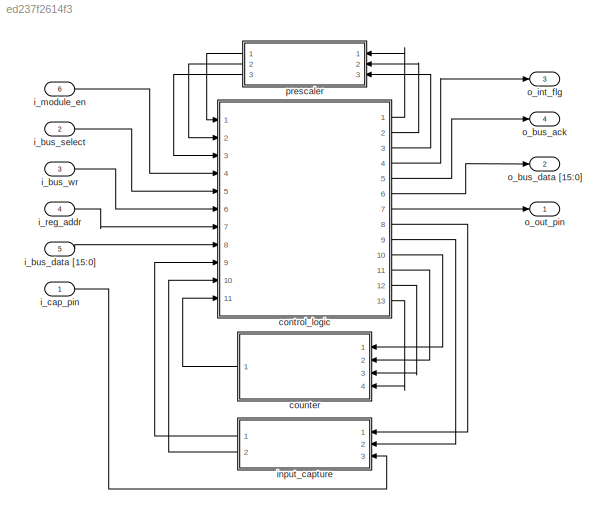
MODEL slx_ed237f2614f3
KIND model
CONFIG AbsTol = auto
CONFIG EnableMultiTasking = off
CONFIG FixedStep = auto
CONFIG MaxStep = auto
CONFIG MinStep = auto
CONFIG RelTol = 1e-3
CONFIG SampleTimeConstraint = Unconstrained
CONFIG Solver = VariableStepAuto
CONFIG SolverName = VariableStepAuto
CONFIG StartTime = 0.0
CONFIG StopTime = 10.0
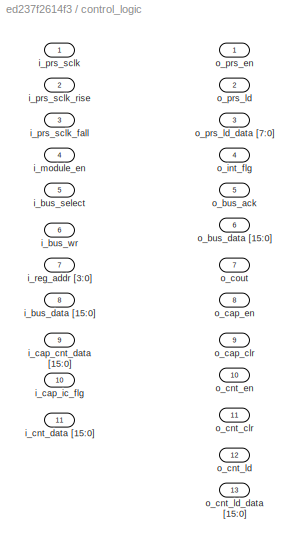
BLOCK [SubSystem] control_logic 
  Ports = [11, 13]
  RequestExecContextInheritance = off
  Variant = off
BLOCK [Inport] control_logic /i_bus_data [15:0]
  IconDisplay = Port number
  Port = 8
BLOCK [Inport] control_logic /i_bus_select
  IconDisplay = Port number
  Port = 5
BLOCK [Inport] control_logic /i_bus_wr
  IconDisplay = Port number
  Port = 6
BLOCK [Inport] control_logic /i_cap_cnt_data [15:0]
  IconDisplay = Port number
  Port = 9
BLOCK [Inport] control_logic /i_cap_ic_flg
  IconDisplay = Port number
  Port = 10
BLOCK [Inport] control_logic /i_cnt_data [15:0]
  IconDisplay = Port number
  Port = 11
BLOCK [Inport] control_logic /i_module_en
  IconDisplay = Port number
  Port = 4
BLOCK [Inport] control_logic /i_prs_sclk
  IconDisplay = Port number
BLOCK [Inport] control_logic /i_prs_sclk_fall
  IconDisplay = Port number
  Port = 3
BLOCK [Inport] control_logic /i_prs_sclk_rise
  IconDisplay = Port number
  Port = 2
BLOCK [Inport] control_logic /i_reg_addr [3:0]
  IconDisplay = Port number
  Port = 7
BLOCK [Outport] control_logic /o_bus_ack
  IconDisplay = Port number
  Port = 5
BLOCK [Outport] control_logic /o_bus_data [15:0]
  IconDisplay = Port number
  Port = 6
BLOCK [Outport] control_logic /o_cap_clr
  IconDisplay = Port number
  Port = 9
BLOCK [Outport] control_logic /o_cap_en
  IconDisplay = Port number
  Port = 8
BLOCK [Outport] control_logic /o_cnt_clr
  IconDisplay = Port number
  Port = 11
BLOCK [Outport] control_logic /o_cnt_en
  IconDisplay = Port number
  Port = 10
BLOCK [Outport] control_logic /o_cnt_ld
  IconDisplay = Port number
  Port = 12
BLOCK [Outport] control_logic /o_cnt_ld_data [15:0]
  IconDisplay = Port number
  Port = 13
BLOCK [Outport] control_logic /o_cout
  IconDisplay = Port number
  Port = 7
BLOCK [Outport] control_logic /o_int_flg
  IconDisplay = Port number
  Port = 4
BLOCK [Outport] control_logic /o_prs_en
  IconDisplay = Port number
BLOCK [Outport] control_logic /o_prs_ld
  IconDisplay = Port number
  Port = 2
BLOCK [Outport] control_logic /o_prs_ld_data [7:0]
  IconDisplay = Port number
  Port = 3
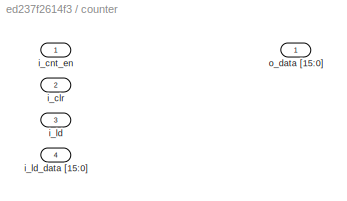
BLOCK [SubSystem] counter
  Ports = [4, 1]
  RequestExecContextInheritance = off
  Variant = off
BLOCK [Inport] counter/i_clr
  IconDisplay = Port number
  Port = 2
BLOCK [Inport] counter/i_cnt_en
  IconDisplay = Port number
BLOCK [Inport] counter/i_ld
  IconDisplay = Port number
  Port = 3
BLOCK [Inport] counter/i_ld_data [15:0]
  IconDisplay = Port number
  Port = 4
BLOCK [Outport] counter/o_data [15:0]
  IconDisplay = Port number
BLOCK [Inport] i_bus_data [15:0]
  IconDisplay = Port number
  Port = 5
BLOCK [Inport] i_bus_select
  IconDisplay = Port number
  Port = 2
BLOCK [Inport] i_bus_wr
  IconDisplay = Port number
  Port = 3
BLOCK [Inport] i_cap_pin
  IconDisplay = Port number
BLOCK [Inport] i_module_en
  IconDisplay = Port number
  Port = 6
BLOCK [Inport] i_reg_addr
  IconDisplay = Port number
  Port = 4
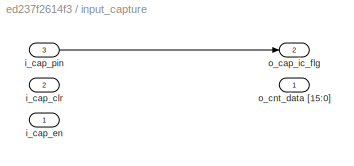
BLOCK [SubSystem] input_capture
  Ports = [3, 2]
  RequestExecContextInheritance = off
  Variant = off
BLOCK [Inport] input_capture/i_cap_clr
  IconDisplay = Port number
  Port = 2
BLOCK [Inport] input_capture/i_cap_en
  IconDisplay = Port number
BLOCK [Inport] input_capture/i_cap_pin
  IconDisplay = Port number
  Port = 3
BLOCK [Outport] input_capture/o_cap_ic_flg
  IconDisplay = Port number
  Port = 2
BLOCK [Outport] input_capture/o_cnt_data [15:0]
  IconDisplay = Port number
BLOCK [Outport] o_bus_ack
  IconDisplay = Port number
  Port = 4
BLOCK [Outport] o_bus_data [15:0]
  IconDisplay = Port number
  Port = 2
BLOCK [Outport] o_int_flg
  IconDisplay = Port number
  Port = 3
BLOCK [Outport] o_out_pin
  IconDisplay = Port number
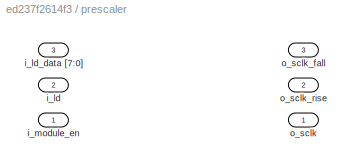
BLOCK [SubSystem] prescaler
  Ports = [3, 3]
  RequestExecContextInheritance = off
  Variant = off
BLOCK [Inport] prescaler/i_ld
  IconDisplay = Port number
  Port = 2
BLOCK [Inport] prescaler/i_ld_data [7:0]
  IconDisplay = Port number
  Port = 3
BLOCK [Inport] prescaler/i_module_en
  IconDisplay = Port number
BLOCK [Outport] prescaler/o_sclk
  IconDisplay = Port number
BLOCK [Outport] prescaler/o_sclk_fall
  IconDisplay = Port number
  Port = 3
BLOCK [Outport] prescaler/o_sclk_rise
  IconDisplay = Port number
  Port = 2
LINE control_logic :1 -> prescaler:1
LINE control_logic :10 -> counter:1
LINE control_logic :11 -> counter:2
LINE control_logic :12 -> counter:3
LINE control_logic :13 -> counter:4
LINE control_logic :2 -> prescaler:2
LINE control_logic :3 -> prescaler:3
LINE control_logic :4 -> o_int_flg:1
LINE control_logic :5 -> o_bus_ack:1
LINE control_logic :6 -> o_bus_data [15:0]:1
LINE control_logic :7 -> o_out_pin:1
LINE control_logic :8 -> input_capture:1
LINE control_logic :9 -> input_capture:2
LINE counter:1 -> control_logic :11
LINE i_bus_data [15:0]:1 -> control_logic :8
LINE i_bus_select:1 -> control_logic :5
LINE i_bus_wr:1 -> control_logic :6
LINE i_cap_pin:1 -> input_capture:3
LINE i_module_en:1 -> control_logic :4
LINE i_reg_addr:1 -> control_logic :7
LINE input_capture/i_cap_pin:1 -> input_capture/o_cap_ic_flg:1
LINE input_capture:1 -> control_logic :9
LINE input_capture:2 -> control_logic :10
LINE prescaler:1 -> control_logic :1
LINE prescaler:2 -> control_logic :2
LINE prescaler:3 -> control_logic :3
